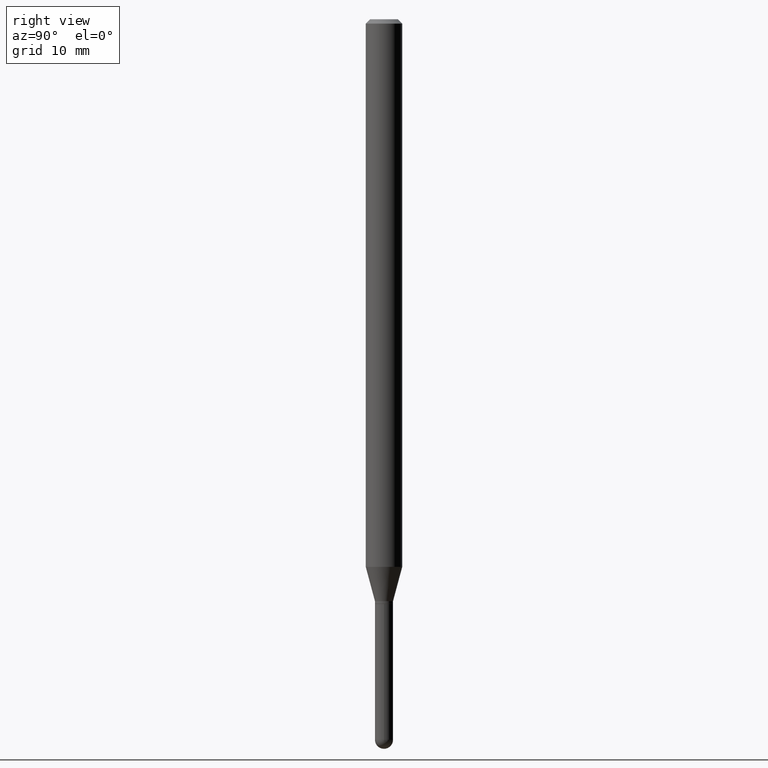
[diagram: clean part render]
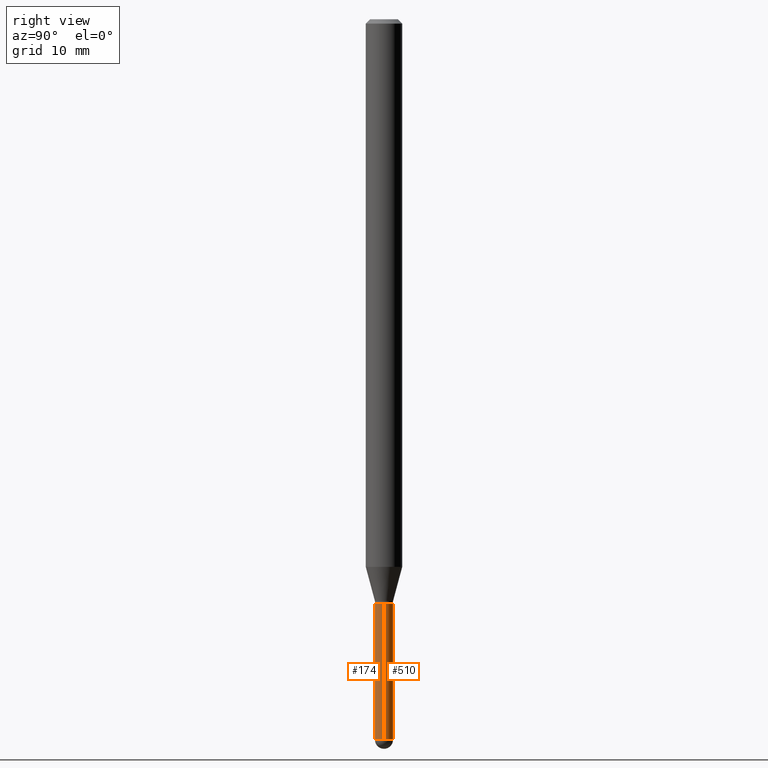
[diagram: same view with one multi-face feature highlighted, each face labeled with its STEP entity id]
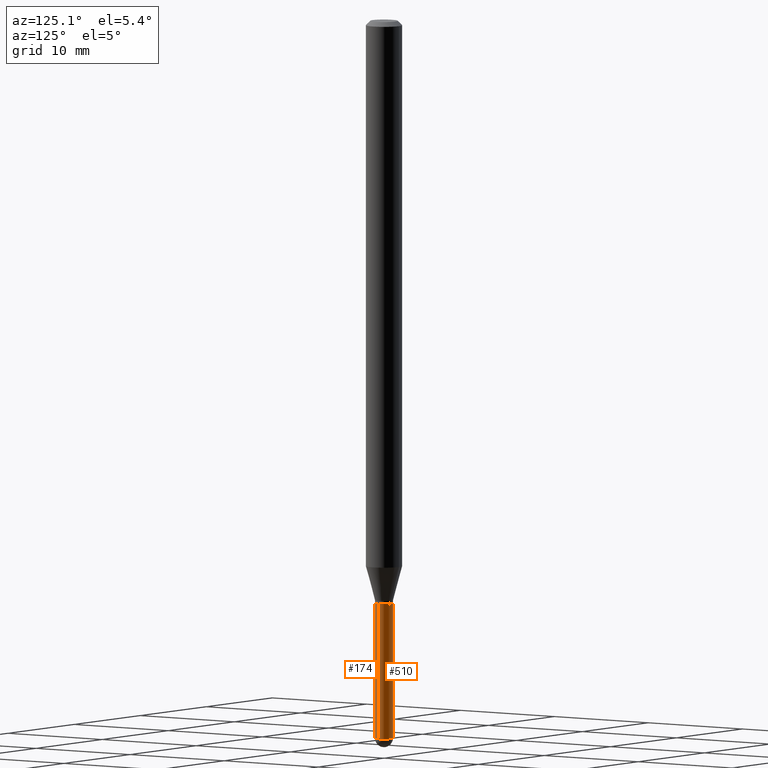
[diagram: same view with one multi-face feature highlighted, each face labeled with its STEP entity id]
A machine part, right view. The highlighted faces form ONE feature: a constant-radius fillet chain: 2 tangent blend faces with common blend radius 0.7874 mm. The faces share edges in the B-rep.
A second angle (auxiliary view) of the same feature is appended — it is thin or edge-on in the first view.
Their STEP definitions:
[1] entity #174 (Cylinder):
#8 = AXIS2_PLACEMENT_3D ( 'NONE', #331, #324, #288 ) ;
#9 = AXIS2_PLACEMENT_3D ( 'NONE', #453, #378, #168 ) ;
#15 = EDGE_CURVE ( 'NONE', #289, #126, #379, .T. ) ;
#17 = AXIS2_PLACEMENT_3D ( 'NONE', #145, #296, #384 ) ;
#19 = DIRECTION ( 'NONE',  ( -2.445468806185136877E-29, 3.491481338843145188E-15, 1.000000000000000000 ) ) ;
#30 = DIRECTION ( 'NONE',  ( 1.000000000000000000, -6.982962677686266711E-15, 4.876176775795935232E-29 ) ) ;
#91 = AXIS2_PLACEMENT_3D ( 'NONE', #192, #225, #30 ) ;
#105 = CARTESIAN_POINT ( 'NONE',  ( -2.202682480855692291E-16, -0.03100000000000842360, -2.469000000000000306 ) ) ;
#126 = VERTEX_POINT ( 'NONE', #357 ) ;
#145 = CARTESIAN_POINT ( 'NONE',  ( 4.900719487595014484E-29, -6.996928603041664772E-15, -2.004000000000000448 ) ) ;
#159 = ORIENTED_EDGE ( 'NONE', *, *, #491, .T. ) ;
#164 = CARTESIAN_POINT ( 'NONE',  ( 0.03099999999999999978, -8.025169857330971394E-15, -2.469000000000000306 ) ) ;
#165 = EDGE_LOOP ( 'NONE', ( #330, #365, #159, #489, #212 ) ) ;
#168 = DIRECTION ( 'NONE',  ( 1.000000000000000000, -6.982962677686270655E-15, 0.000000000000000000 ) ) ;
#174 = ADVANCED_FACE ( 'NONE', ( #450 ), #463, .T. ) ;
#192 = CARTESIAN_POINT ( 'NONE',  ( 0.000000000000000000, 0.000000000000000000, 0.000000000000000000 ) ) ;
#193 = CARTESIAN_POINT ( 'NONE',  ( -0.03099999999999999978, -7.588429766237065021E-15, -2.469000000000000306 ) ) ;
#206 = EDGE_CURVE ( 'NONE', #323, #126, #349, .T. ) ;
#211 = VERTEX_POINT ( 'NONE', #105 ) ;
#212 = ORIENTED_EDGE ( 'NONE', *, *, #15, .F. ) ;
#215 = CIRCLE ( 'NONE', #9, 0.03099999999999999978 ) ;
#225 = DIRECTION ( 'NONE',  ( -2.445468806185136597E-29, 3.491481338843145583E-15, 1.000000000000000000 ) ) ;
#230 = CIRCLE ( 'NONE', #8, 0.03099999999999999978 ) ;
#232 = VECTOR ( 'NONE', #19, 39.37007874015748143 ) ;
#241 = CARTESIAN_POINT ( 'NONE',  ( -0.03099999999999999978, -7.588429766237065021E-15, -2.004000000000000448 ) ) ;
#256 = LINE ( 'NONE', #418, #232 ) ;
#288 = DIRECTION ( 'NONE',  ( 1.000000000000000000, -6.982962677686270655E-15, 0.000000000000000000 ) ) ;
#289 = VERTEX_POINT ( 'NONE', #241 ) ;
#296 = DIRECTION ( 'NONE',  ( -2.445468806185136597E-29, 3.491481338843145583E-15, 1.000000000000000000 ) ) ;
#309 = EDGE_CURVE ( 'NONE', #397, #211, #230, .T. ) ;
#323 = VERTEX_POINT ( 'NONE', #164 ) ;
#324 = DIRECTION ( 'NONE',  ( -2.445468806185136597E-29, 3.491481338843145583E-15, 1.000000000000000000 ) ) ;
#330 = ORIENTED_EDGE ( 'NONE', *, *, #475, .F. ) ;
#331 = CARTESIAN_POINT ( 'NONE',  ( 6.037862482471103495E-29, -8.620467425603728566E-15, -2.469000000000000306 ) ) ;
#349 = LINE ( 'NONE', #467, #394 ) ;
#357 = CARTESIAN_POINT ( 'NONE',  ( 0.03099999999999999978, -7.213400446049938314E-15, -2.004000000000000448 ) ) ;
#365 = ORIENTED_EDGE ( 'NONE', *, *, #309, .T. ) ;
#378 = DIRECTION ( 'NONE',  ( -2.445468806185136597E-29, 3.491481338843145583E-15, 1.000000000000000000 ) ) ;
#379 = CIRCLE ( 'NONE', #17, 0.03099999999999999978 ) ;
#384 = DIRECTION ( 'NONE',  ( 1.000000000000000000, -6.982962677686270655E-15, 0.000000000000000000 ) ) ;
#394 = VECTOR ( 'NONE', #508, 39.37007874015748143 ) ;
#397 = VERTEX_POINT ( 'NONE', #193 ) ;
#418 = CARTESIAN_POINT ( 'NONE',  ( -0.03099999999999999978, 2.202682480856310560E-16, -1.524869877979020612E-30 ) ) ;
#450 = FACE_OUTER_BOUND ( 'NONE', #165, .T. ) ;
#453 = CARTESIAN_POINT ( 'NONE',  ( 6.037862482471103495E-29, -8.620467425603728566E-15, -2.469000000000000306 ) ) ;
#463 = CYLINDRICAL_SURFACE ( 'NONE', #91, 0.03099999999999999978 ) ;
#467 = CARTESIAN_POINT ( 'NONE',  ( 0.03099999999999999978, -2.164718430082742572E-16, 1.511614800496739984E-30 ) ) ;
#475 = EDGE_CURVE ( 'NONE', #397, #289, #256, .T. ) ;
#489 = ORIENTED_EDGE ( 'NONE', *, *, #206, .T. ) ;
#491 = EDGE_CURVE ( 'NONE', #211, #323, #215, .T. ) ;
#508 = DIRECTION ( 'NONE',  ( -2.445468806185136877E-29, 3.491481338843145188E-15, 1.000000000000000000 ) ) ;
[2] entity #510 (Cylinder):
#11 = ORIENTED_EDGE ( 'NONE', *, *, #475, .T. ) ;
#19 = DIRECTION ( 'NONE',  ( -2.445468806185136877E-29, 3.491481338843145188E-15, 1.000000000000000000 ) ) ;
#28 = VERTEX_POINT ( 'NONE', #422 ) ;
#51 = CARTESIAN_POINT ( 'NONE',  ( 6.037862482471103495E-29, -8.620467425603728566E-15, -2.469000000000000306 ) ) ;
#61 = FACE_OUTER_BOUND ( 'NONE', #409, .T. ) ;
#70 = EDGE_CURVE ( 'NONE', #323, #28, #98, .T. ) ;
#77 = DIRECTION ( 'NONE',  ( -2.445468806185136597E-29, 3.491481338843145583E-15, 1.000000000000000000 ) ) ;
#79 = DIRECTION ( 'NONE',  ( 1.000000000000000000, -6.982962677686270655E-15, 0.000000000000000000 ) ) ;
#86 = ORIENTED_EDGE ( 'NONE', *, *, #497, .T. ) ;
#97 = CARTESIAN_POINT ( 'NONE',  ( 0.000000000000000000, 0.000000000000000000, 0.000000000000000000 ) ) ;
#98 = CIRCLE ( 'NONE', #171, 0.03099999999999999978 ) ;
#118 = CARTESIAN_POINT ( 'NONE',  ( 4.900719487595014484E-29, -6.996928603041664772E-15, -2.004000000000000448 ) ) ;
#126 = VERTEX_POINT ( 'NONE', #357 ) ;
#128 = ORIENTED_EDGE ( 'NONE', *, *, #70, .T. ) ;
#134 = CIRCLE ( 'NONE', #327, 0.03099999999999999978 ) ;
#164 = CARTESIAN_POINT ( 'NONE',  ( 0.03099999999999999978, -8.025169857330971394E-15, -2.469000000000000306 ) ) ;
#171 = AXIS2_PLACEMENT_3D ( 'NONE', #51, #77, #317 ) ;
#173 = DIRECTION ( 'NONE',  ( -2.445468806185136597E-29, 3.491481338843145583E-15, 1.000000000000000000 ) ) ;
#175 = DIRECTION ( 'NONE',  ( -2.445468806185136597E-29, 3.491481338843145583E-15, 1.000000000000000000 ) ) ;
#177 = CARTESIAN_POINT ( 'NONE',  ( 6.037862482471103495E-29, -8.620467425603728566E-15, -2.469000000000000306 ) ) ;
#193 = CARTESIAN_POINT ( 'NONE',  ( -0.03099999999999999978, -7.588429766237065021E-15, -2.469000000000000306 ) ) ;
#206 = EDGE_CURVE ( 'NONE', #323, #126, #349, .T. ) ;
#231 = AXIS2_PLACEMENT_3D ( 'NONE', #97, #175, #338 ) ;
#232 = VECTOR ( 'NONE', #19, 39.37007874015748143 ) ;
#241 = CARTESIAN_POINT ( 'NONE',  ( -0.03099999999999999978, -7.588429766237065021E-15, -2.004000000000000448 ) ) ;
#250 = AXIS2_PLACEMENT_3D ( 'NONE', #177, #173, #334 ) ;
#256 = LINE ( 'NONE', #418, #232 ) ;
#260 = CYLINDRICAL_SURFACE ( 'NONE', #231, 0.03099999999999999978 ) ;
#262 = ORIENTED_EDGE ( 'NONE', *, *, #206, .F. ) ;
#289 = VERTEX_POINT ( 'NONE', #241 ) ;
#317 = DIRECTION ( 'NONE',  ( 1.000000000000000000, -6.982962677686270655E-15, 0.000000000000000000 ) ) ;
#323 = VERTEX_POINT ( 'NONE', #164 ) ;
#327 = AXIS2_PLACEMENT_3D ( 'NONE', #118, #438, #79 ) ;
#334 = DIRECTION ( 'NONE',  ( 1.000000000000000000, -6.982962677686270655E-15, 0.000000000000000000 ) ) ;
#337 = ORIENTED_EDGE ( 'NONE', *, *, #363, .F. ) ;
#338 = DIRECTION ( 'NONE',  ( 1.000000000000000000, -6.982962677686266711E-15, 4.876176775795935232E-29 ) ) ;
#349 = LINE ( 'NONE', #467, #394 ) ;
#354 = CIRCLE ( 'NONE', #250, 0.03099999999999999978 ) ;
#357 = CARTESIAN_POINT ( 'NONE',  ( 0.03099999999999999978, -7.213400446049938314E-15, -2.004000000000000448 ) ) ;
#363 = EDGE_CURVE ( 'NONE', #126, #289, #134, .T. ) ;
#394 = VECTOR ( 'NONE', #508, 39.37007874015748143 ) ;
#397 = VERTEX_POINT ( 'NONE', #193 ) ;
#409 = EDGE_LOOP ( 'NONE', ( #86, #11, #337, #262, #128 ) ) ;
#418 = CARTESIAN_POINT ( 'NONE',  ( -0.03099999999999999978, 2.202682480856310560E-16, -1.524869877979020612E-30 ) ) ;
#422 = CARTESIAN_POINT ( 'NONE',  ( 2.164718430083332245E-16, 0.03099999999999118044, -2.469000000000000306 ) ) ;
#438 = DIRECTION ( 'NONE',  ( -2.445468806185136597E-29, 3.491481338843145583E-15, 1.000000000000000000 ) ) ;
#467 = CARTESIAN_POINT ( 'NONE',  ( 0.03099999999999999978, -2.164718430082742572E-16, 1.511614800496739984E-30 ) ) ;
#475 = EDGE_CURVE ( 'NONE', #397, #289, #256, .T. ) ;
#497 = EDGE_CURVE ( 'NONE', #28, #397, #354, .T. ) ;
#508 = DIRECTION ( 'NONE',  ( -2.445468806185136877E-29, 3.491481338843145188E-15, 1.000000000000000000 ) ) ;
#510 = ADVANCED_FACE ( 'NONE', ( #61 ), #260, .T. ) ;